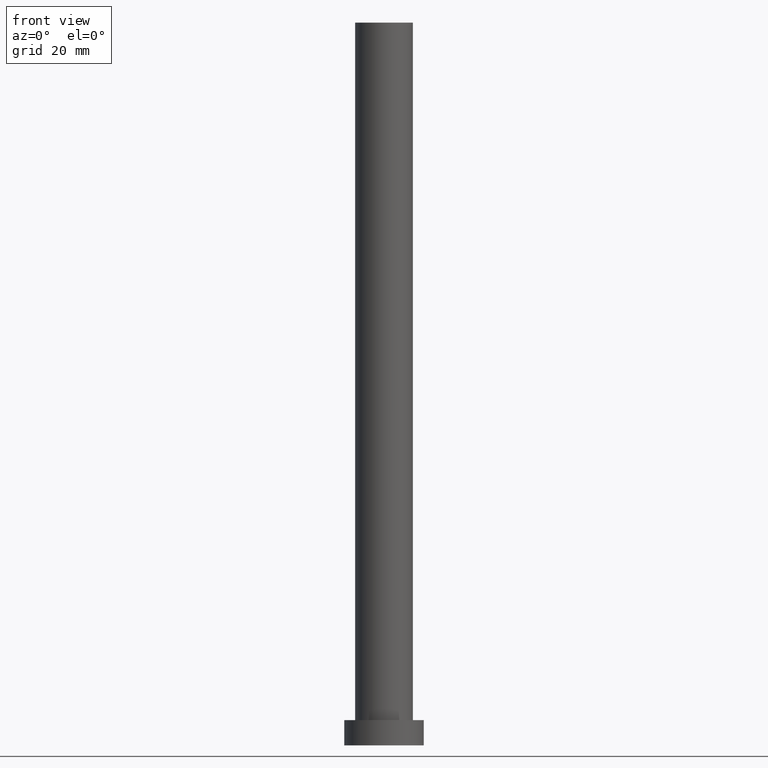
[diagram: clean part render]
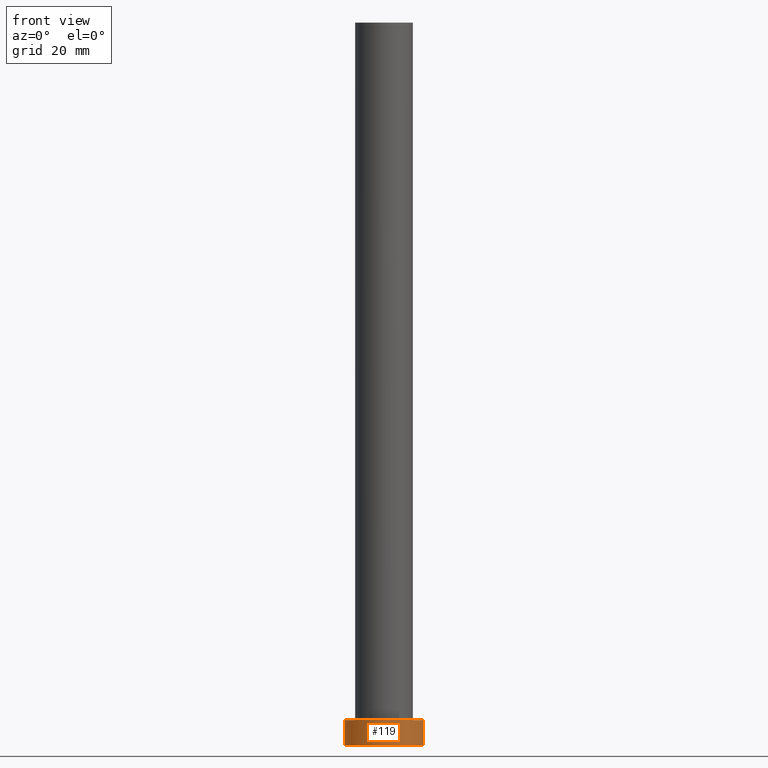
[diagram: same view with one face highlighted and labeled with its STEP entity id]
A machine part, front view. The second image highlights one B-rep face of the part: STEP entity #119.
In plain terms, the highlighted cylindrical surface (partial cylindrical patch) has radius 11 mm, axis along (-0, -0, -1).
Its self-contained STEP definition (entity closure, byte-faithful):
#5 = ORIENTED_EDGE ( 'NONE', *, *, #92, .T. ) ;
#15 = ORIENTED_EDGE ( 'NONE', *, *, #149, .F. ) ;
#16 = VECTOR ( 'NONE', #179, 1000.000000000000000 ) ;
#19 = DIRECTION ( 'NONE',  ( 1.000000000000000000, 0.000000000000000000, 0.000000000000000000 ) ) ;
#22 = CARTESIAN_POINT ( 'NONE',  ( 0.000000000000000000, 0.000000000000000000, 7.000000000000000000 ) ) ;
#29 = VECTOR ( 'NONE', #177, 1000.000000000000000 ) ;
#38 = FACE_OUTER_BOUND ( 'NONE', #154, .T. ) ;
#46 = AXIS2_PLACEMENT_3D ( 'NONE', #22, #59, #165 ) ;
#48 = DIRECTION ( 'NONE',  ( 0.000000000000000000, 0.000000000000000000, 1.000000000000000000 ) ) ;
#49 = VERTEX_POINT ( 'NONE', #230 ) ;
#53 = VERTEX_POINT ( 'NONE', #78 ) ;
#58 = EDGE_CURVE ( 'NONE', #176, #49, #105, .T. ) ;
#59 = DIRECTION ( 'NONE',  ( -0.000000000000000000, -0.000000000000000000, -1.000000000000000000 ) ) ;
#60 = CARTESIAN_POINT ( 'NONE',  ( -11.00000000000000000, 0.000000000000000000, 7.000000000000000000 ) ) ;
#78 = CARTESIAN_POINT ( 'NONE',  ( 11.00000000000000000, 1.347111479062088405E-15, 0.000000000000000000 ) ) ;
#86 = CIRCLE ( 'NONE', #253, 11.00000000000000000 ) ;
#92 = EDGE_CURVE ( 'NONE', #176, #134, #232, .T. ) ;
#100 = CARTESIAN_POINT ( 'NONE',  ( 0.000000000000000000, 0.000000000000000000, 7.000000000000000000 ) ) ;
#105 = CIRCLE ( 'NONE', #189, 11.00000000000000000 ) ;
#112 = ORIENTED_EDGE ( 'NONE', *, *, #249, .T. ) ;
#119 = ADVANCED_FACE ( 'NONE', ( #38 ), #211, .T. ) ;
#123 = LINE ( 'NONE', #140, #16 ) ;
#130 = CARTESIAN_POINT ( 'NONE',  ( 0.000000000000000000, 0.000000000000000000, 0.000000000000000000 ) ) ;
#134 = VERTEX_POINT ( 'NONE', #178 ) ;
#137 = DIRECTION ( 'NONE',  ( 0.000000000000000000, 0.000000000000000000, 1.000000000000000000 ) ) ;
#140 = CARTESIAN_POINT ( 'NONE',  ( 11.00000000000000000, 1.347111479062088405E-15, 7.000000000000000000 ) ) ;
#149 = EDGE_CURVE ( 'NONE', #49, #53, #123, .T. ) ;
#154 = EDGE_LOOP ( 'NONE', ( #15, #225, #5, #112 ) ) ;
#165 = DIRECTION ( 'NONE',  ( -1.000000000000000000, 0.000000000000000000, 0.000000000000000000 ) ) ;
#176 = VERTEX_POINT ( 'NONE', #248 ) ;
#177 = DIRECTION ( 'NONE',  ( -0.000000000000000000, -0.000000000000000000, -1.000000000000000000 ) ) ;
#178 = CARTESIAN_POINT ( 'NONE',  ( -11.00000000000000000, 0.000000000000000000, 0.000000000000000000 ) ) ;
#179 = DIRECTION ( 'NONE',  ( -0.000000000000000000, -0.000000000000000000, -1.000000000000000000 ) ) ;
#189 = AXIS2_PLACEMENT_3D ( 'NONE', #100, #137, #19 ) ;
#204 = DIRECTION ( 'NONE',  ( 1.000000000000000000, 0.000000000000000000, 0.000000000000000000 ) ) ;
#211 = CYLINDRICAL_SURFACE ( 'NONE', #46, 11.00000000000000000 ) ;
#225 = ORIENTED_EDGE ( 'NONE', *, *, #58, .F. ) ;
#230 = CARTESIAN_POINT ( 'NONE',  ( 11.00000000000000000, 1.347111479062088405E-15, 7.000000000000000000 ) ) ;
#232 = LINE ( 'NONE', #60, #29 ) ;
#248 = CARTESIAN_POINT ( 'NONE',  ( -11.00000000000000000, 0.000000000000000000, 7.000000000000000000 ) ) ;
#249 = EDGE_CURVE ( 'NONE', #134, #53, #86, .T. ) ;
#253 = AXIS2_PLACEMENT_3D ( 'NONE', #130, #48, #204 ) ;